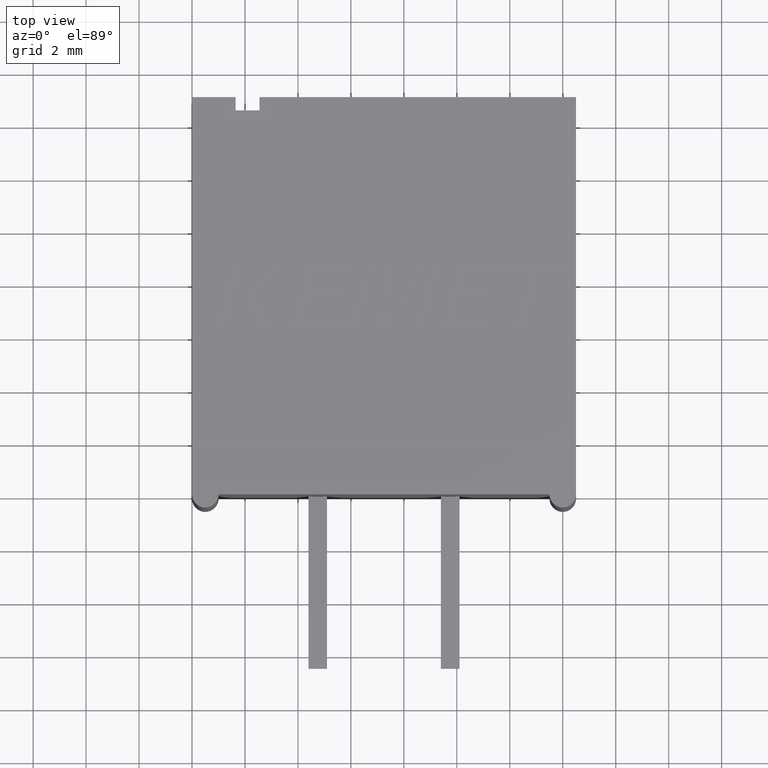
[diagram: clean part render]
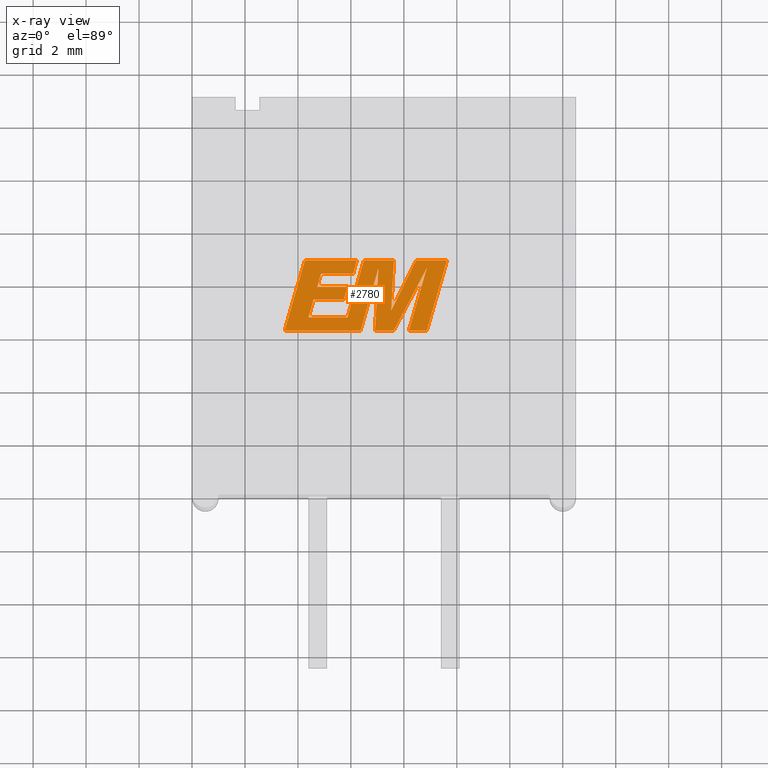
[diagram: x-ray — body ghosted, one internal face saturated and labeled with its STEP entity id]
A machine part, top view, then the same camera in x-ray: the body is ghosted and one INTERNAL B-rep face — a face not visible from any outside direction — is saturated and labeled: STEP entity #2780.
In plain terms, the highlighted planar face has unit normal (0, 0, -1).
Its self-contained STEP definition (entity closure, byte-faithful):
#16 = VERTEX_POINT ( 'NONE', #1992 ) ;
#28 = DIRECTION ( 'NONE',  ( 0.2746459304916904500, 0.9615454294334477800, 0.0000000000000000000 ) ) ;
#54 = LINE ( 'NONE', #883, #1968 ) ;
#58 = LINE ( 'NONE', #904, #286 ) ;
#66 = CARTESIAN_POINT ( 'NONE',  ( 4.263708238798578500, 8.837654244200020800, 9.500000000000000000 ) ) ;
#71 = VECTOR ( 'NONE', #1630, 1000.000000000000000 ) ;
#146 = VECTOR ( 'NONE', #1041, 1000.000000000000100 ) ;
#167 = LINE ( 'NONE', #1923, #1114 ) ;
#170 = DIRECTION ( 'NONE',  ( 0.05375259206908267200, 0.9985542843760947300, 0.0000000000000000000 ) ) ;
#251 = ORIENTED_EDGE ( 'NONE', *, *, #629, .F. ) ;
#271 = ORIENTED_EDGE ( 'NONE', *, *, #2743, .F. ) ;
#279 = VERTEX_POINT ( 'NONE', #1939 ) ;
#286 = VECTOR ( 'NONE', #2172, 1000.000000000000100 ) ;
#292 = VECTOR ( 'NONE', #2220, 1000.000000000000200 ) ;
#295 = CARTESIAN_POINT ( 'NONE',  ( 8.864982552712175900, 6.179999999999963300, 9.500000000000000000 ) ) ;
#310 = VECTOR ( 'NONE', #2121, 1000.000000000000000 ) ;
#312 = EDGE_CURVE ( 'NONE', #279, #1239, #493, .T. ) ;
#332 = VECTOR ( 'NONE', #565, 1000.000000000000000 ) ;
#346 = VERTEX_POINT ( 'NONE', #1737 ) ;
#385 = LINE ( 'NONE', #1017, #1449 ) ;
#397 = CARTESIAN_POINT ( 'NONE',  ( 6.492179145012103800, 8.837654244200020800, 9.500000000000000000 ) ) ;
#413 = VECTOR ( 'NONE', #2379, 1000.000000000000000 ) ;
#427 = ORIENTED_EDGE ( 'NONE', *, *, #2425, .F. ) ;
#463 = CARTESIAN_POINT ( 'NONE',  ( 4.263708238798578500, 8.837654244200020800, 9.500000000000000000 ) ) ;
#465 = VECTOR ( 'NONE', #28, 1000.000000000000100 ) ;
#466 = ORIENTED_EDGE ( 'NONE', *, *, #2509, .F. ) ;
#468 = AXIS2_PLACEMENT_3D ( 'NONE', #2176, #1766, #1958 ) ;
#476 = LINE ( 'NONE', #1031, #852 ) ;
#477 = LINE ( 'NONE', #2216, #2419 ) ;
#478 = VECTOR ( 'NONE', #979, 1000.000000000000000 ) ;
#489 = LINE ( 'NONE', #2051, #1715 ) ;
#493 = LINE ( 'NONE', #873, #465 ) ;
#499 = PLANE ( 'NONE',  #468 ) ;
#516 = CARTESIAN_POINT ( 'NONE',  ( 5.869418452770671200, 7.837460135776125500, 9.500000000000000000 ) ) ;
#537 = VECTOR ( 'NONE', #1835, 1000.000000000000100 ) ;
#551 = DIRECTION ( 'NONE',  ( -1.000000000000000000, 0.0000000000000000000, 0.0000000000000000000 ) ) ;
#553 = EDGE_CURVE ( 'NONE', #2412, #1749, #1925, .T. ) ;
#565 = DIRECTION ( 'NONE',  ( 1.000000000000000000, 0.0000000000000000000, 0.0000000000000000000 ) ) ;
#571 = VERTEX_POINT ( 'NONE', #1601 ) ;
#583 = VECTOR ( 'NONE', #1367, 1000.000000000000200 ) ;
#609 = VERTEX_POINT ( 'NONE', #2510 ) ;
#629 = EDGE_CURVE ( 'NONE', #346, #1068, #2050, .T. ) ;
#643 = CARTESIAN_POINT ( 'NONE',  ( 8.872352310469141300, 8.557433751054336600, 9.500000000000000000 ) ) ;
#675 = VECTOR ( 'NONE', #2782, 1000.000000000000200 ) ;
#700 = EDGE_CURVE ( 'NONE', #1662, #896, #1853, .T. ) ;
#716 = CARTESIAN_POINT ( 'NONE',  ( 5.873604345875018700, 6.685620332097907500, 9.500000000000000000 ) ) ;
#798 = EDGE_CURVE ( 'NONE', #2362, #609, #489, .T. ) ;
#801 = DIRECTION ( 'NONE',  ( -0.2760118818968556600, -0.9611542233438690200, 0.0000000000000000000 ) ) ;
#819 = LINE ( 'NONE', #1202, #332 ) ;
#842 = CARTESIAN_POINT ( 'NONE',  ( 6.492179145012103800, 8.837654244200020800, 9.500000000000000000 ) ) ;
#852 = VECTOR ( 'NONE', #2565, 1000.000000000000200 ) ;
#857 = FACE_OUTER_BOUND ( 'NONE', #2380, .T. ) ;
#865 = CARTESIAN_POINT ( 'NONE',  ( 5.873604345875018700, 6.685620332097907500, 9.500000000000000000 ) ) ;
#873 = CARTESIAN_POINT ( 'NONE',  ( 5.729085982140318800, 7.346151032837122200, 9.500000000000000000 ) ) ;
#883 = CARTESIAN_POINT ( 'NONE',  ( 6.227094130244663200, 8.837654244200020800, 9.500000000000000000 ) ) ;
#885 = LINE ( 'NONE', #66, #292 ) ;
#894 = CARTESIAN_POINT ( 'NONE',  ( 7.521774280518285700, 6.938991905475818500, 9.500000000000000000 ) ) ;
#896 = VERTEX_POINT ( 'NONE', #1448 ) ;
#904 = CARTESIAN_POINT ( 'NONE',  ( 7.617295493814149100, 6.179999999999963300, 9.500000000000000000 ) ) ;
#907 = VERTEX_POINT ( 'NONE', #1905 ) ;
#919 = CARTESIAN_POINT ( 'NONE',  ( 6.362052817040035000, 6.179999999999963300, 9.500000000000000000 ) ) ;
#932 = ORIENTED_EDGE ( 'NONE', *, *, #1487, .F. ) ;
#951 = CARTESIAN_POINT ( 'NONE',  ( 8.463448667976059900, 8.837654244200020800, 9.500000000000000000 ) ) ;
#958 = DIRECTION ( 'NONE',  ( -1.000000000000000000, 0.0000000000000000000, 0.0000000000000000000 ) ) ;
#965 = VERTEX_POINT ( 'NONE', #1522 ) ;
#972 = CARTESIAN_POINT ( 'NONE',  ( 6.083416177474299000, 8.331783404990297000, 9.500000000000000000 ) ) ;
#979 = DIRECTION ( 'NONE',  ( -1.000000000000000000, 0.0000000000000000000, 0.0000000000000000000 ) ) ;
#982 = CARTESIAN_POINT ( 'NONE',  ( 8.463448667976059900, 8.837654244200020800, 9.500000000000000000 ) ) ;
#992 = VECTOR ( 'NONE', #958, 1000.000000000000000 ) ;
#1000 = VECTOR ( 'NONE', #1164, 1000.000000000000000 ) ;
#1001 = CARTESIAN_POINT ( 'NONE',  ( 7.041411955910903400, 8.546039717685067300, 9.500000000000000000 ) ) ;
#1003 = LINE ( 'NONE', #2776, #310 ) ;
#1017 = CARTESIAN_POINT ( 'NONE',  ( 8.872352310469141300, 8.557433751054336600, 9.500000000000000000 ) ) ;
#1031 = CARTESIAN_POINT ( 'NONE',  ( 4.400347749657830900, 6.685620332097907500, 9.500000000000000000 ) ) ;
#1041 = DIRECTION ( 'NONE',  ( 0.2732148821746271900, 0.9619530280415487000, 0.0000000000000000000 ) ) ;
#1060 = EDGE_CURVE ( 'NONE', #1239, #2442, #2611, .T. ) ;
#1068 = VERTEX_POINT ( 'NONE', #972 ) ;
#1074 = DIRECTION ( 'NONE',  ( 0.2793947940878303000, 0.9601763114327592800, 0.0000000000000000000 ) ) ;
#1100 = VERTEX_POINT ( 'NONE', #2256 ) ;
#1114 = VECTOR ( 'NONE', #1074, 999.9999999999998900 ) ;
#1127 = VECTOR ( 'NONE', #2514, 1000.000000000000100 ) ;
#1164 = DIRECTION ( 'NONE',  ( -0.4443210308329209000, -0.8958676361826956000, 0.0000000000000000000 ) ) ;
#1180 = EDGE_CURVE ( 'NONE', #1575, #2362, #385, .T. ) ;
#1202 = CARTESIAN_POINT ( 'NONE',  ( 4.588551322212409500, 7.346151032837122200, 9.500000000000000000 ) ) ;
#1218 = CARTESIAN_POINT ( 'NONE',  ( 7.521774280518285700, 6.938991905475818500, 9.500000000000000000 ) ) ;
#1226 = LINE ( 'NONE', #2542, #146 ) ;
#1239 = VERTEX_POINT ( 'NONE', #1886 ) ;
#1264 = EDGE_CURVE ( 'NONE', #1749, #907, #1372, .T. ) ;
#1271 = ORIENTED_EDGE ( 'NONE', *, *, #2407, .F. ) ;
#1334 = VERTEX_POINT ( 'NONE', #865 ) ;
#1346 = ORIENTED_EDGE ( 'NONE', *, *, #700, .F. ) ;
#1358 = VERTEX_POINT ( 'NONE', #842 ) ;
#1367 = DIRECTION ( 'NONE',  ( 0.2763139702539122400, 0.9610674221107070600, 0.0000000000000000000 ) ) ;
#1371 = CARTESIAN_POINT ( 'NONE',  ( 7.617295493814149100, 6.179999999999963300, 9.500000000000000000 ) ) ;
#1372 = LINE ( 'NONE', #1218, #2252 ) ;
#1393 = ORIENTED_EDGE ( 'NONE', *, *, #2167, .F. ) ;
#1448 = CARTESIAN_POINT ( 'NONE',  ( 7.041411955910903400, 8.546039717685067300, 9.500000000000000000 ) ) ;
#1449 = VECTOR ( 'NONE', #801, 1000.000000000000100 ) ;
#1487 = EDGE_CURVE ( 'NONE', #571, #2452, #1703, .T. ) ;
#1493 = ORIENTED_EDGE ( 'NONE', *, *, #2236, .F. ) ;
#1521 = ORIENTED_EDGE ( 'NONE', *, *, #2649, .F. ) ;
#1522 = CARTESIAN_POINT ( 'NONE',  ( 9.629077744040479600, 8.837654244200020800, 9.500000000000000000 ) ) ;
#1565 = EDGE_CURVE ( 'NONE', #1758, #1693, #54, .T. ) ;
#1575 = VERTEX_POINT ( 'NONE', #643 ) ;
#1576 = EDGE_CURVE ( 'NONE', #2442, #346, #167, .T. ) ;
#1589 = ORIENTED_EDGE ( 'NONE', *, *, #553, .F. ) ;
#1601 = CARTESIAN_POINT ( 'NONE',  ( 6.908788639779093200, 6.179999999999963300, 9.500000000000000000 ) ) ;
#1615 = ORIENTED_EDGE ( 'NONE', *, *, #1576, .F. ) ;
#1627 = DIRECTION ( 'NONE',  ( 1.000000000000000000, 0.0000000000000000000, 0.0000000000000000000 ) ) ;
#1630 = DIRECTION ( 'NONE',  ( 1.000000000000000000, 0.0000000000000000000, 0.0000000000000000000 ) ) ;
#1661 = ORIENTED_EDGE ( 'NONE', *, *, #798, .F. ) ;
#1662 = VERTEX_POINT ( 'NONE', #919 ) ;
#1693 = VERTEX_POINT ( 'NONE', #463 ) ;
#1703 = LINE ( 'NONE', #2346, #413 ) ;
#1715 = VECTOR ( 'NONE', #1627, 1000.000000000000000 ) ;
#1737 = CARTESIAN_POINT ( 'NONE',  ( 4.872561745612989300, 8.331783404990297000, 9.500000000000000000 ) ) ;
#1740 = EDGE_CURVE ( 'NONE', #2452, #1575, #58, .T. ) ;
#1749 = VERTEX_POINT ( 'NONE', #894 ) ;
#1758 = VERTEX_POINT ( 'NONE', #2204 ) ;
#1766 = DIRECTION ( 'NONE',  ( 0.0000000000000000000, 0.0000000000000000000, -1.000000000000000000 ) ) ;
#1780 = ORIENTED_EDGE ( 'NONE', *, *, #2701, .F. ) ;
#1805 = CARTESIAN_POINT ( 'NONE',  ( 8.189631527709961400, 6.179999999999963300, 9.500000000000000000 ) ) ;
#1818 = CARTESIAN_POINT ( 'NONE',  ( 3.498942332733150800, 6.179999999999963300, 9.500000000000000000 ) ) ;
#1835 = DIRECTION ( 'NONE',  ( -0.05596501978068171200, -0.9984327301130245800, 0.0000000000000000000 ) ) ;
#1853 = LINE ( 'NONE', #2035, #1127 ) ;
#1878 = ORIENTED_EDGE ( 'NONE', *, *, #2745, .F. ) ;
#1886 = CARTESIAN_POINT ( 'NONE',  ( 5.869418452770671200, 7.837460135776125500, 9.500000000000000000 ) ) ;
#1905 = CARTESIAN_POINT ( 'NONE',  ( 7.623980063185513200, 8.837654244200020800, 9.500000000000000000 ) ) ;
#1923 = CARTESIAN_POINT ( 'NONE',  ( 4.728722175348202100, 7.837460135776125500, 9.500000000000000000 ) ) ;
#1925 = LINE ( 'NONE', #982, #1000 ) ;
#1938 = LINE ( 'NONE', #2453, #478 ) ;
#1939 = CARTESIAN_POINT ( 'NONE',  ( 5.729085982140318800, 7.346151032837122200, 9.500000000000000000 ) ) ;
#1958 = DIRECTION ( 'NONE',  ( -1.000000000000000000, 0.0000000000000000000, 0.0000000000000000000 ) ) ;
#1968 = VECTOR ( 'NONE', #2367, 1000.000000000000000 ) ;
#1992 = CARTESIAN_POINT ( 'NONE',  ( 4.400347749657830900, 6.685620332097907500, 9.500000000000000000 ) ) ;
#2016 = CARTESIAN_POINT ( 'NONE',  ( 4.728722175348202100, 7.837460135776125500, 9.500000000000000000 ) ) ;
#2032 = ORIENTED_EDGE ( 'NONE', *, *, #1565, .F. ) ;
#2035 = CARTESIAN_POINT ( 'NONE',  ( 6.362052817040035000, 6.179999999999963300, 9.500000000000000000 ) ) ;
#2050 = LINE ( 'NONE', #2529, #71 ) ;
#2051 = CARTESIAN_POINT ( 'NONE',  ( 8.189631527709961400, 6.179999999999963300, 9.500000000000000000 ) ) ;
#2052 = EDGE_CURVE ( 'NONE', #1358, #1334, #2389, .T. ) ;
#2121 = DIRECTION ( 'NONE',  ( 1.000000000000000000, 0.0000000000000000000, 0.0000000000000000000 ) ) ;
#2128 = ORIENTED_EDGE ( 'NONE', *, *, #2052, .F. ) ;
#2143 = ORIENTED_EDGE ( 'NONE', *, *, #1264, .F. ) ;
#2155 = EDGE_CURVE ( 'NONE', #2479, #1662, #1003, .T. ) ;
#2167 = EDGE_CURVE ( 'NONE', #1068, #1758, #1226, .T. ) ;
#2172 = DIRECTION ( 'NONE',  ( 0.4668459304955206400, 0.8843386665637613700, 0.0000000000000000000 ) ) ;
#2176 = CARTESIAN_POINT ( 'NONE',  ( -2.428233754909972400, -2.697005886012217200, 9.500000000000000000 ) ) ;
#2204 = CARTESIAN_POINT ( 'NONE',  ( 6.227094130244663200, 8.837654244200020800, 9.500000000000000000 ) ) ;
#2216 = CARTESIAN_POINT ( 'NONE',  ( 9.629077744040479600, 8.837654244200020800, 9.500000000000000000 ) ) ;
#2220 = DIRECTION ( 'NONE',  ( -0.2765379750249961600, -0.9610029908221277000, 0.0000000000000000000 ) ) ;
#2236 = EDGE_CURVE ( 'NONE', #16, #1100, #476, .T. ) ;
#2238 = ORIENTED_EDGE ( 'NONE', *, *, #2155, .F. ) ;
#2249 = DIRECTION ( 'NONE',  ( -1.000000000000000000, 0.0000000000000000000, 0.0000000000000000000 ) ) ;
#2252 = VECTOR ( 'NONE', #170, 1000.000000000000100 ) ;
#2256 = CARTESIAN_POINT ( 'NONE',  ( 4.588551322212409500, 7.346151032837122200, 9.500000000000000000 ) ) ;
#2325 = LINE ( 'NONE', #1001, #537 ) ;
#2346 = CARTESIAN_POINT ( 'NONE',  ( 6.908788639779093200, 6.179999999999963300, 9.500000000000000000 ) ) ;
#2362 = VERTEX_POINT ( 'NONE', #1805 ) ;
#2364 = LINE ( 'NONE', #295, #583 ) ;
#2367 = DIRECTION ( 'NONE',  ( -1.000000000000000000, 0.0000000000000000000, 0.0000000000000000000 ) ) ;
#2379 = DIRECTION ( 'NONE',  ( 1.000000000000000000, 0.0000000000000000000, 0.0000000000000000000 ) ) ;
#2380 = EDGE_LOOP ( 'NONE', ( #1878, #1521, #1661, #2673, #2473, #932, #271, #1346, #2238, #1271, #2032, #1393, #251, #1615, #2672, #2551, #466, #1493, #427, #2128, #1780, #2143, #1589 ) ) ;
#2389 = LINE ( 'NONE', #397, #675 ) ;
#2390 = VECTOR ( 'NONE', #2249, 1000.000000000000000 ) ;
#2407 = EDGE_CURVE ( 'NONE', #1693, #2479, #885, .T. ) ;
#2412 = VERTEX_POINT ( 'NONE', #951 ) ;
#2419 = VECTOR ( 'NONE', #551, 1000.000000000000000 ) ;
#2425 = EDGE_CURVE ( 'NONE', #1334, #16, #2662, .T. ) ;
#2442 = VERTEX_POINT ( 'NONE', #2016 ) ;
#2452 = VERTEX_POINT ( 'NONE', #1371 ) ;
#2453 = CARTESIAN_POINT ( 'NONE',  ( 7.623980063185513200, 8.837654244200020800, 9.500000000000000000 ) ) ;
#2473 = ORIENTED_EDGE ( 'NONE', *, *, #1740, .F. ) ;
#2479 = VERTEX_POINT ( 'NONE', #1818 ) ;
#2509 = EDGE_CURVE ( 'NONE', #1100, #279, #819, .T. ) ;
#2510 = CARTESIAN_POINT ( 'NONE',  ( 8.864982552712175900, 6.179999999999963300, 9.500000000000000000 ) ) ;
#2514 = DIRECTION ( 'NONE',  ( 0.2759782365590804400, 0.9611638845408936300, 0.0000000000000000000 ) ) ;
#2529 = CARTESIAN_POINT ( 'NONE',  ( 4.872561745612989300, 8.331783404990297000, 9.500000000000000000 ) ) ;
#2542 = CARTESIAN_POINT ( 'NONE',  ( 6.083416177474299000, 8.331783404990297000, 9.500000000000000000 ) ) ;
#2551 = ORIENTED_EDGE ( 'NONE', *, *, #312, .F. ) ;
#2565 = DIRECTION ( 'NONE',  ( 0.2740217765954059400, 0.9617234872620598100, 0.0000000000000000000 ) ) ;
#2611 = LINE ( 'NONE', #516, #992 ) ;
#2649 = EDGE_CURVE ( 'NONE', #609, #965, #2364, .T. ) ;
#2662 = LINE ( 'NONE', #716, #2390 ) ;
#2672 = ORIENTED_EDGE ( 'NONE', *, *, #1060, .F. ) ;
#2673 = ORIENTED_EDGE ( 'NONE', *, *, #1180, .F. ) ;
#2701 = EDGE_CURVE ( 'NONE', #907, #1358, #1938, .T. ) ;
#2743 = EDGE_CURVE ( 'NONE', #896, #571, #2325, .T. ) ;
#2745 = EDGE_CURVE ( 'NONE', #965, #2412, #477, .T. ) ;
#2776 = CARTESIAN_POINT ( 'NONE',  ( 5.888998410123623900, 6.179999999999963300, 9.500000000000000000 ) ) ;
#2780 = ADVANCED_FACE ( 'NONE', ( #857 ), #499, .T. ) ;
#2782 = DIRECTION ( 'NONE',  ( -0.2762517575166416600, -0.9610853065513833600, 0.0000000000000000000 ) ) ;